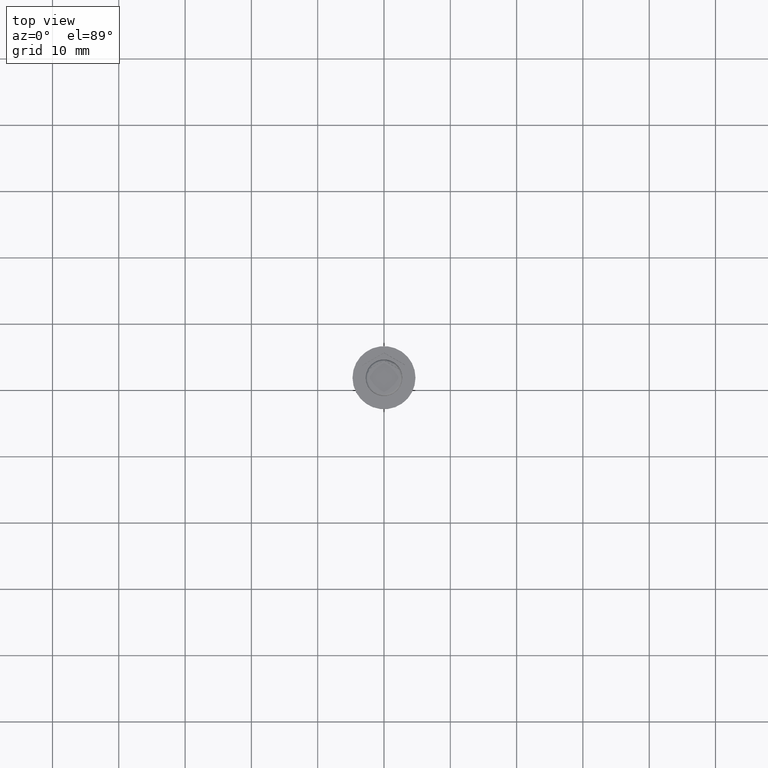
[diagram: clean part render]
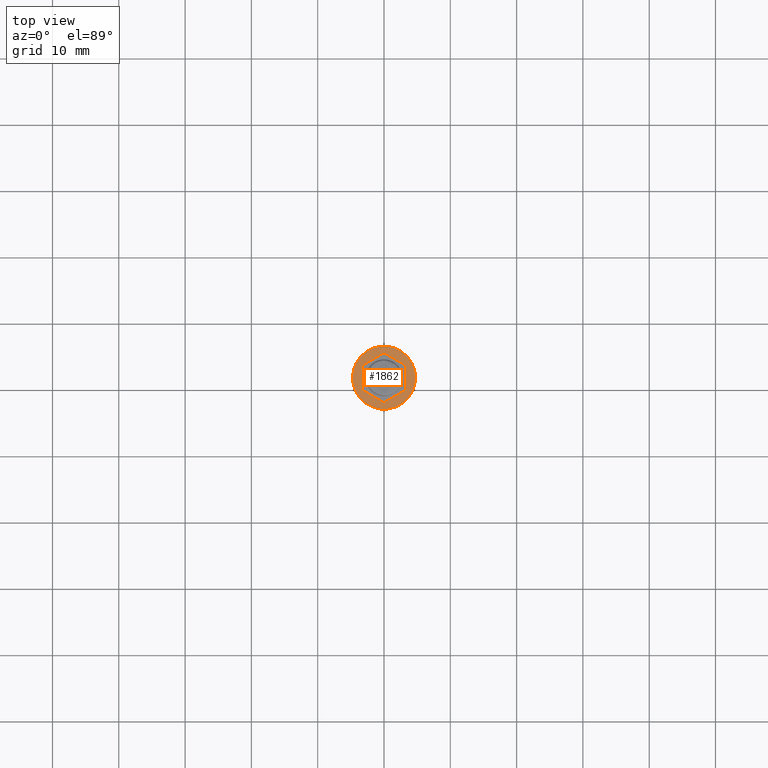
[diagram: same view with one face highlighted and labeled with its STEP entity id]
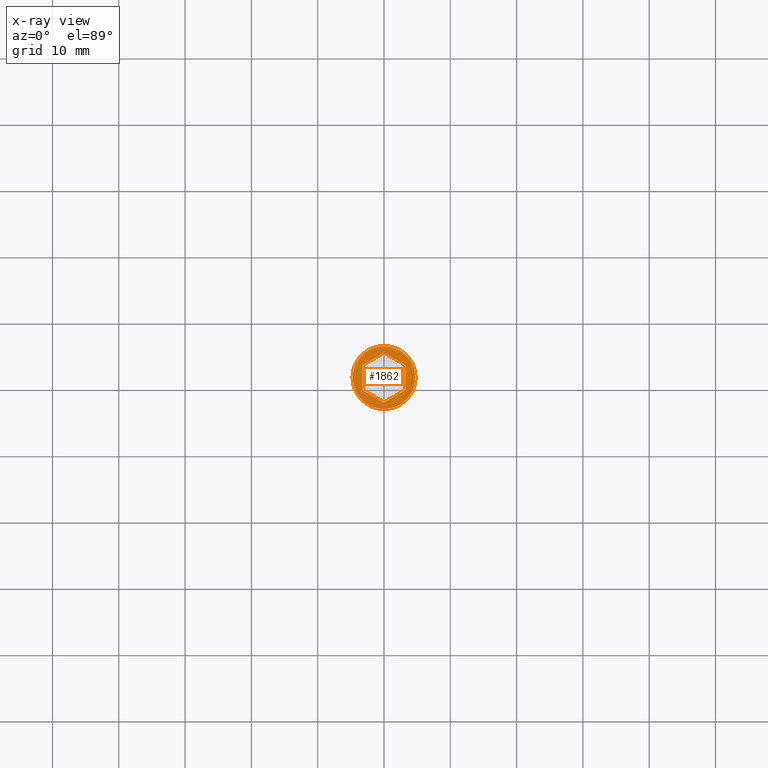
[diagram: x-ray of the same camera — body ghosted, the highlighted face saturated]
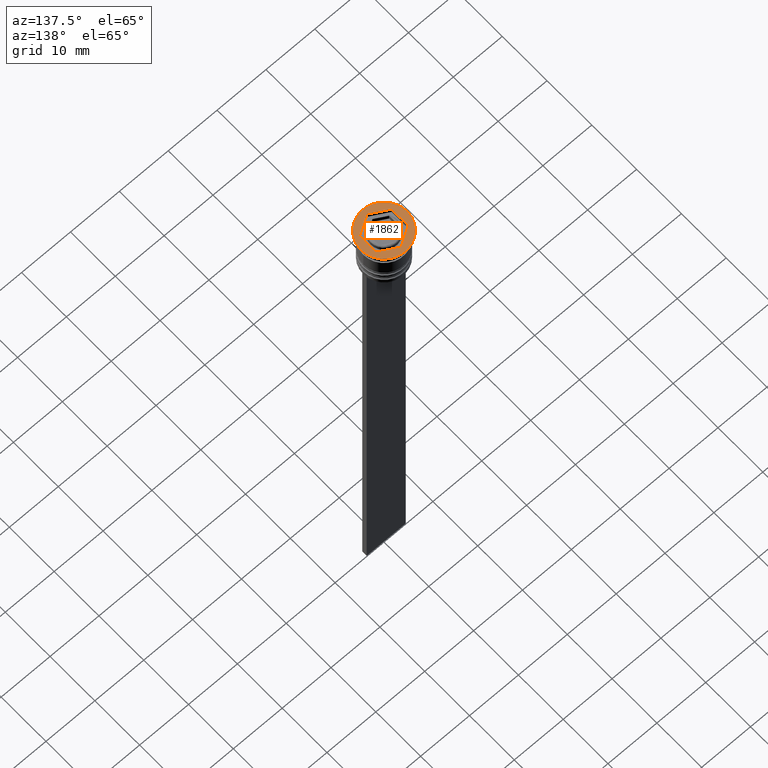
[diagram: same view with one face highlighted and labeled with its STEP entity id]
A machine part, top view. The second image highlights one B-rep face of the part: STEP entity #1862.
The next image is the same camera in x-ray: the body ghosted, the highlighted face saturated — about 0% of this face is hidden behind the body in this view.
A second angle (auxiliary view) of the same face is appended — the face is thin or edge-on in the first view.
In plain terms, the highlighted planar face has unit normal (0, -0, 1).
Its self-contained STEP definition (entity closure, byte-faithful):
#3 = DIRECTION ( 'NONE',  ( -0.000000000000000000, -0.000000000000000000, 1.000000000000000000 ) ) ;
#78 = LINE ( 'NONE', #1178, #2225 ) ;
#111 = AXIS2_PLACEMENT_3D ( 'NONE', #1849, #2035, #165 ) ;
#131 = FACE_BOUND ( 'NONE', #897, .T. ) ;
#163 = CARTESIAN_POINT ( 'NONE',  ( 3.250000000000000444, -1.876388374866283515, 0.000000000000000000 ) ) ;
#165 = DIRECTION ( 'NONE',  ( 1.000000000000000000, 0.000000000000000000, 0.000000000000000000 ) ) ;
#225 = LINE ( 'NONE', #1198, #2380 ) ;
#240 = CARTESIAN_POINT ( 'NONE',  ( 0.000000000000000000, 3.752776749732567030, 0.000000000000000000 ) ) ;
#332 = LINE ( 'NONE', #1989, #1151 ) ;
#336 = VECTOR ( 'NONE', #1658, 1000.000000000000000 ) ;
#341 = CARTESIAN_POINT ( 'NONE',  ( 0.000000000000000000, 0.000000000000000000, 0.000000000000000000 ) ) ;
#488 = VERTEX_POINT ( 'NONE', #163 ) ;
#561 = ORIENTED_EDGE ( 'NONE', *, *, #1821, .F. ) ;
#695 = DIRECTION ( 'NONE',  ( 1.000000000000000000, 0.000000000000000000, 0.000000000000000000 ) ) ;
#717 = VERTEX_POINT ( 'NONE', #2053 ) ;
#747 = CARTESIAN_POINT ( 'NONE',  ( 3.250000000000001332, 1.876388374866284181, 0.000000000000000000 ) ) ;
#861 = FACE_OUTER_BOUND ( 'NONE', #1347, .T. ) ;
#866 = VERTEX_POINT ( 'NONE', #240 ) ;
#897 = EDGE_LOOP ( 'NONE', ( #2230, #561, #1668, #2109, #1936, #1835 ) ) ;
#904 = LINE ( 'NONE', #930, #1920 ) ;
#915 = CARTESIAN_POINT ( 'NONE',  ( 0.000000000000000000, 0.000000000000000000, 0.000000000000000000 ) ) ;
#926 = PLANE ( 'NONE',  #111 ) ;
#930 = CARTESIAN_POINT ( 'NONE',  ( -3.250000000000000444, -1.876388374866284625, 0.000000000000000000 ) ) ;
#950 = LINE ( 'NONE', #747, #336 ) ;
#953 = VECTOR ( 'NONE', #1375, 1000.000000000000000 ) ;
#968 = VERTEX_POINT ( 'NONE', #1410 ) ;
#971 = EDGE_CURVE ( 'NONE', #717, #1744, #2031, .T. ) ;
#984 = CARTESIAN_POINT ( 'NONE',  ( 3.250000000000001332, 1.876388374866284181, 0.000000000000000000 ) ) ;
#1056 = EDGE_CURVE ( 'NONE', #2208, #866, #950, .T. ) ;
#1069 = AXIS2_PLACEMENT_3D ( 'NONE', #341, #2139, #695 ) ;
#1151 = VECTOR ( 'NONE', #2126, 1000.000000000000000 ) ;
#1163 = EDGE_CURVE ( 'NONE', #968, #1521, #904, .T. ) ;
#1176 = VERTEX_POINT ( 'NONE', #2075 ) ;
#1178 = CARTESIAN_POINT ( 'NONE',  ( -2.112280747572084180E-16, -3.752776749732567918, 0.000000000000000000 ) ) ;
#1198 = CARTESIAN_POINT ( 'NONE',  ( 0.000000000000000000, 3.752776749732567030, 0.000000000000000000 ) ) ;
#1249 = ORIENTED_EDGE ( 'NONE', *, *, #971, .T. ) ;
#1318 = DIRECTION ( 'NONE',  ( 1.000000000000000000, 0.000000000000000000, 0.000000000000000000 ) ) ;
#1337 = CARTESIAN_POINT ( 'NONE',  ( -3.250000000000000444, 1.876388374866282627, 0.000000000000000000 ) ) ;
#1347 = EDGE_LOOP ( 'NONE', ( #1388, #1249 ) ) ;
#1375 = DIRECTION ( 'NONE',  ( 0.000000000000000000, -1.000000000000000000, 0.000000000000000000 ) ) ;
#1388 = ORIENTED_EDGE ( 'NONE', *, *, #1451, .T. ) ;
#1410 = CARTESIAN_POINT ( 'NONE',  ( -3.250000000000000444, -1.876388374866284625, 0.000000000000000000 ) ) ;
#1451 = EDGE_CURVE ( 'NONE', #1744, #717, #1810, .T. ) ;
#1521 = VERTEX_POINT ( 'NONE', #1655 ) ;
#1558 = DIRECTION ( 'NONE',  ( -0.8660254037844385966, -0.5000000000000001110, 0.000000000000000000 ) ) ;
#1655 = CARTESIAN_POINT ( 'NONE',  ( -2.112280747572084180E-16, -3.752776749732567918, 0.000000000000000000 ) ) ;
#1658 = DIRECTION ( 'NONE',  ( -0.8660254037844388186, 0.4999999999999997224, 0.000000000000000000 ) ) ;
#1665 = EDGE_CURVE ( 'NONE', #866, #1176, #225, .T. ) ;
#1667 = DIRECTION ( 'NONE',  ( 0.8660254037844387076, -0.4999999999999998890, 0.000000000000000000 ) ) ;
#1668 = ORIENTED_EDGE ( 'NONE', *, *, #2006, .F. ) ;
#1744 = VERTEX_POINT ( 'NONE', #2349 ) ;
#1810 = CIRCLE ( 'NONE', #2224, 4.750000000000000000 ) ;
#1821 = EDGE_CURVE ( 'NONE', #488, #2208, #332, .T. ) ;
#1835 = ORIENTED_EDGE ( 'NONE', *, *, #1665, .F. ) ;
#1849 = CARTESIAN_POINT ( 'NONE',  ( 0.000000000000000000, 0.000000000000000000, 0.000000000000000000 ) ) ;
#1862 = ADVANCED_FACE ( 'NONE', ( #131, #861 ), #926, .T. ) ;
#1920 = VECTOR ( 'NONE', #1667, 1000.000000000000114 ) ;
#1930 = LINE ( 'NONE', #1337, #953 ) ;
#1936 = ORIENTED_EDGE ( 'NONE', *, *, #2080, .F. ) ;
#1989 = CARTESIAN_POINT ( 'NONE',  ( 3.250000000000000444, -1.876388374866283515, 0.000000000000000000 ) ) ;
#2006 = EDGE_CURVE ( 'NONE', #1521, #488, #78, .T. ) ;
#2031 = CIRCLE ( 'NONE', #1069, 4.750000000000000000 ) ;
#2035 = DIRECTION ( 'NONE',  ( 0.000000000000000000, -0.000000000000000000, 1.000000000000000000 ) ) ;
#2053 = CARTESIAN_POINT ( 'NONE',  ( -4.750000000000000000, 5.817072295949927426E-16, 0.000000000000000000 ) ) ;
#2068 = DIRECTION ( 'NONE',  ( 0.8660254037844385966, 0.5000000000000001110, 0.000000000000000000 ) ) ;
#2075 = CARTESIAN_POINT ( 'NONE',  ( -3.250000000000000444, 1.876388374866282627, 0.000000000000000000 ) ) ;
#2080 = EDGE_CURVE ( 'NONE', #1176, #968, #1930, .T. ) ;
#2109 = ORIENTED_EDGE ( 'NONE', *, *, #1163, .F. ) ;
#2126 = DIRECTION ( 'NONE',  ( 2.311253228826398661E-16, 1.000000000000000000, 0.000000000000000000 ) ) ;
#2139 = DIRECTION ( 'NONE',  ( -0.000000000000000000, -0.000000000000000000, 1.000000000000000000 ) ) ;
#2208 = VERTEX_POINT ( 'NONE', #984 ) ;
#2224 = AXIS2_PLACEMENT_3D ( 'NONE', #915, #3, #1318 ) ;
#2225 = VECTOR ( 'NONE', #2068, 1000.000000000000000 ) ;
#2230 = ORIENTED_EDGE ( 'NONE', *, *, #1056, .F. ) ;
#2349 = CARTESIAN_POINT ( 'NONE',  ( 4.750000000000000000, 0.000000000000000000, 0.000000000000000000 ) ) ;
#2380 = VECTOR ( 'NONE', #1558, 1000.000000000000000 ) ;